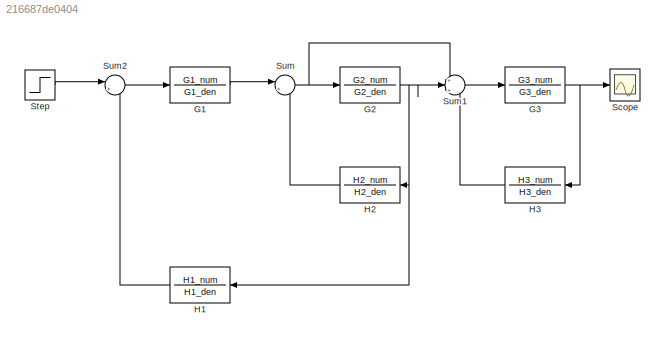
MODEL slx_216687de0404
KIND model
CONFIG AbsTol = auto
CONFIG EnableMultiTasking = off
CONFIG FixedStep = auto
CONFIG MaxStep = auto
CONFIG MinStep = auto
CONFIG RelTol = 1e-3
CONFIG SampleTimeConstraint = Unconstrained
CONFIG SolverName = VariableStepAuto
CONFIG StartTime = 0.0
CONFIG StopTime = 20
BLOCK [TransferFcn] G1
  Denominator = G1_den
  Numerator = G1_num
BLOCK [TransferFcn] G2
  Denominator = G2_den
  Numerator = G2_num
BLOCK [TransferFcn] G3
  Denominator = G3_den
  Numerator = G3_num
BLOCK [TransferFcn] H1
  Denominator = H1_den
  Numerator = H1_num
BLOCK [TransferFcn] H2
  Denominator = H2_den
  Numerator = H2_num
BLOCK [TransferFcn] H3
  Denominator = H3_den
  Numerator = H3_num
BLOCK [Scope] Scope
  Floating = off
  NumInputPorts = 1
  ScopeSpecificationString = Simulink.scopes.TimeScopeBlockCfg('CurrentConfiguration', extmgr.ConfigurationSet(extmgr.Configuration('Core','General UI',true),extmgr.Configuration('Core','Source UI',true),extmgr.Configuration('Sources','WiredSimulink',true),extmgr.Configuration('Visuals','Time Domain',true,'SerializedDisplays',{struct('MinYLimReal','-1615831034.55115','MaxYLimReal','179536782.51258','YLabelReal','','MinYLimMag...<+1416ch>
BLOCK [Step] Step
  SampleTime = 0
  Time = 0
BLOCK [Sum] Sum
  Inputs = |+-
BLOCK [Sum] Sum1
  Inputs = +|+-
BLOCK [Sum] Sum2
  Inputs = |+-
LINE G1:1 -> Sum:1
NET G2:1 -> H1:1, H2:1, Sum1:2
NET G3:1 -> H3:1, Scope:1
LINE H1:1 -> Sum2:2
LINE H2:1 -> Sum:2
LINE H3:1 -> Sum1:3
LINE Step:1 -> Sum2:1
LINE Sum1:1 -> G3:1
LINE Sum2:1 -> G1:1
NET Sum:1 -> G2:1, Sum1:1
note: NET lines group one-source signal fan-out (src -> all destinations, sorted); 1:1 wires keep LINE
